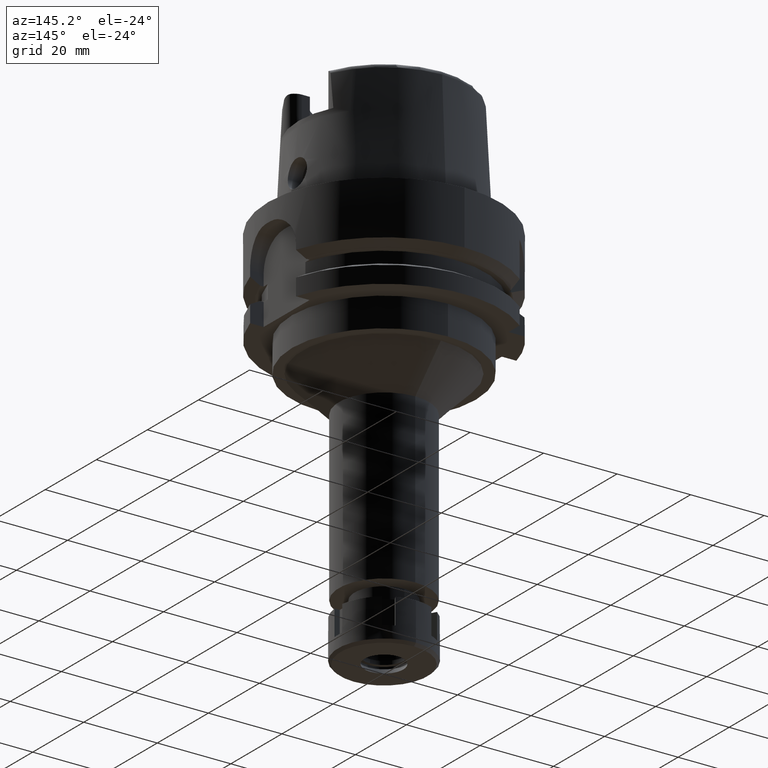
[diagram: clean part render]
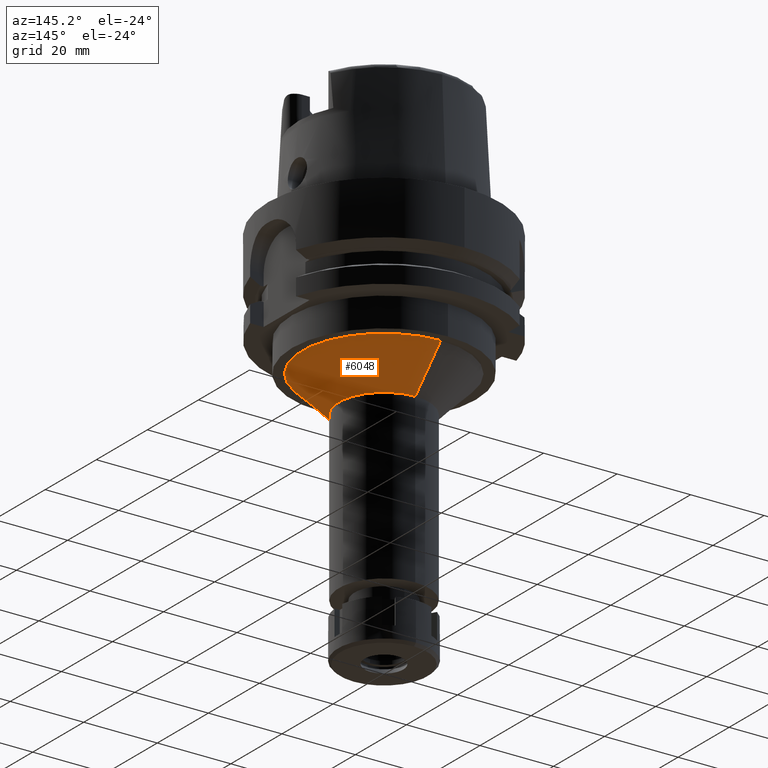
[diagram: same view with one face highlighted and labeled with its STEP entity id]
A machine part, auxiliary view. The second image highlights one B-rep face of the part: STEP entity #6048.
In plain terms, the highlighted conical surface has half-angle 45 deg.
Its self-contained STEP definition (entity closure, byte-faithful):
#15 = EDGE_CURVE ( 'NONE', #1444, #1003, #1906, .T. ) ;
#45 = CARTESIAN_POINT ( 'NONE',  ( 0.0000000000000000000, 0.0000000000000000000, -39.00000000000000000 ) ) ;
#164 = VECTOR ( 'NONE', #2958, 1000.000000000000114 ) ;
#212 = VECTOR ( 'NONE', #4015, 1000.000000000000114 ) ;
#447 = FACE_OUTER_BOUND ( 'NONE', #4563, .T. ) ;
#669 = CONICAL_SURFACE ( 'NONE', #2657, 17.25000000000000000, 0.7853981633972997312 ) ;
#987 = VERTEX_POINT ( 'NONE', #2324 ) ;
#1003 = VERTEX_POINT ( 'NONE', #2794 ) ;
#1072 = CARTESIAN_POINT ( 'NONE',  ( 0.0000000000000000000, -22.25000000000000000, -34.00000000000000000 ) ) ;
#1435 = ORIENTED_EDGE ( 'NONE', *, *, #2855, .F. ) ;
#1444 = VERTEX_POINT ( 'NONE', #3169 ) ;
#1450 = ORIENTED_EDGE ( 'NONE', *, *, #1814, .T. ) ;
#1505 = AXIS2_PLACEMENT_3D ( 'NONE', #5766, #4054, #5943 ) ;
#1814 = EDGE_CURVE ( 'NONE', #987, #1444, #3201, .T. ) ;
#1906 = LINE ( 'NONE', #1072, #164 ) ;
#1909 = CARTESIAN_POINT ( 'NONE',  ( 0.0000000000000000000, 12.25000000000000000, -44.00000000000000000 ) ) ;
#1946 = DIRECTION ( 'NONE',  ( 0.0000000000000000000, 1.000000000000000000, 0.0000000000000000000 ) ) ;
#2324 = CARTESIAN_POINT ( 'NONE',  ( 0.0000000000000000000, 22.25000000000000000, -34.00000000000000000 ) ) ;
#2504 = LINE ( 'NONE', #3434, #212 ) ;
#2657 = AXIS2_PLACEMENT_3D ( 'NONE', #45, #3830, #1946 ) ;
#2794 = CARTESIAN_POINT ( 'NONE',  ( 0.0000000000000000000, -12.25000000000000000, -44.00000000000000000 ) ) ;
#2855 = EDGE_CURVE ( 'NONE', #987, #4821, #2504, .T. ) ;
#2958 = DIRECTION ( 'NONE',  ( 0.0000000000000000000, 0.7071067811865474617, -0.7071067811865474617 ) ) ;
#2988 = CIRCLE ( 'NONE', #1505, 12.25000000000000000 ) ;
#3042 = CARTESIAN_POINT ( 'NONE',  ( 0.0000000000000000000, 0.0000000000000000000, -34.00000000000000000 ) ) ;
#3052 = ORIENTED_EDGE ( 'NONE', *, *, #3291, .F. ) ;
#3169 = CARTESIAN_POINT ( 'NONE',  ( 0.0000000000000000000, -22.25000000000000000, -34.00000000000000000 ) ) ;
#3201 = CIRCLE ( 'NONE', #4977, 22.25000000000000000 ) ;
#3291 = EDGE_CURVE ( 'NONE', #4821, #1003, #2988, .T. ) ;
#3434 = CARTESIAN_POINT ( 'NONE',  ( 0.0000000000000000000, 22.25000000000000000, -34.00000000000000000 ) ) ;
#3830 = DIRECTION ( 'NONE',  ( 0.0000000000000000000, 0.0000000000000000000, 1.000000000000000000 ) ) ;
#4015 = DIRECTION ( 'NONE',  ( 0.0000000000000000000, -0.7071067811865474617, -0.7071067811865474617 ) ) ;
#4054 = DIRECTION ( 'NONE',  ( 0.0000000000000000000, 0.0000000000000000000, -1.000000000000000000 ) ) ;
#4485 = DIRECTION ( 'NONE',  ( 0.0000000000000000000, 0.0000000000000000000, -1.000000000000000000 ) ) ;
#4563 = EDGE_LOOP ( 'NONE', ( #1450, #5323, #3052, #1435 ) ) ;
#4821 = VERTEX_POINT ( 'NONE', #1909 ) ;
#4977 = AXIS2_PLACEMENT_3D ( 'NONE', #3042, #4485, #5482 ) ;
#5323 = ORIENTED_EDGE ( 'NONE', *, *, #15, .T. ) ;
#5482 = DIRECTION ( 'NONE',  ( 0.0000000000000000000, 1.000000000000000000, 0.0000000000000000000 ) ) ;
#5766 = CARTESIAN_POINT ( 'NONE',  ( 0.0000000000000000000, 0.0000000000000000000, -44.00000000000000000 ) ) ;
#5943 = DIRECTION ( 'NONE',  ( 0.0000000000000000000, 1.000000000000000000, 0.0000000000000000000 ) ) ;
#6048 = ADVANCED_FACE ( 'NONE', ( #447 ), #669, .T. ) ;